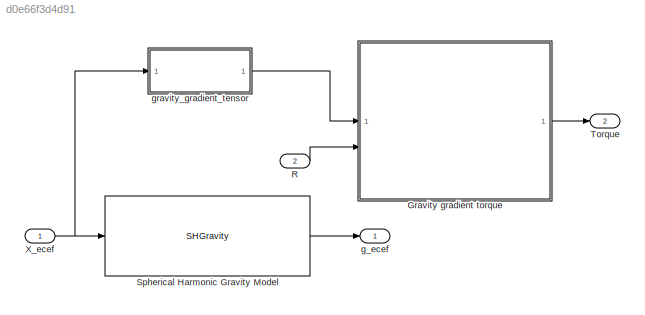
MODEL slx_d0e66f3d4d91
KIND model
CONFIG AbsTol = auto
CONFIG EnableMultiTasking = off
CONFIG FixedStep = 0.001
CONFIG MaxStep = auto
CONFIG MinStep = auto
CONFIG RelTol = 1e-3
CONFIG SampleTimeConstraint = Unconstrained
CONFIG SolverName = FixedStepAuto
CONFIG StartTime = 0.0
CONFIG StopTime = 10.0
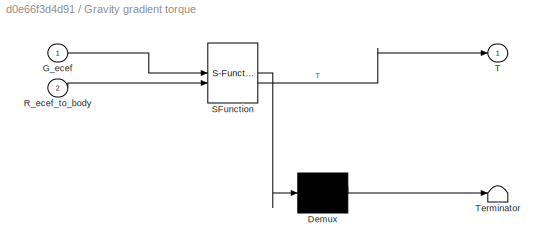
BLOCK [SubSystem] Gravity gradient torque
  ErrorFcn = Stateflow.Translate.translate
  LibrarySourceBlock = simulink/User-Defined\nFunctions/MATLAB Function
  PermitHierarchicalResolution = ExplicitOnly
  SFBlockType = MATLAB Function
  TreatAsAtomicUnit = on
BLOCK [Demux] Gravity gradient torque/ Demux 
  Outputs = 1
BLOCK [S-Function] Gravity gradient torque/ SFunction 
  EnableBusSupport = on
  FunctionName = sf_sfun
  Parameters = I
  PortCounts = [2 2]
  SFcnIsStateOwnerBlock = off
  SFunctionDeploymentMode = off
  Tag = Stateflow S-Function 2
BLOCK [Terminator] Gravity gradient torque/ Terminator 
BLOCK [Inport] Gravity gradient torque/G_ecef
BLOCK [Inport] Gravity gradient torque/R_ecef_to_body
  Port = 2
BLOCK [Outport] Gravity gradient torque/T
BLOCK [Inport] R
  Interpolate = off
  Port = 2
  PortDimensions = [3 3]
BLOCK [SHGravity] Spherical Harmonic Gravity Model
BLOCK [Outport] Torque
  Port = 2
  PortDimensions = 3
BLOCK [Inport] X_ecef
  PortDimensions = 3
BLOCK [Outport] g_ecef
  PortDimensions = 3
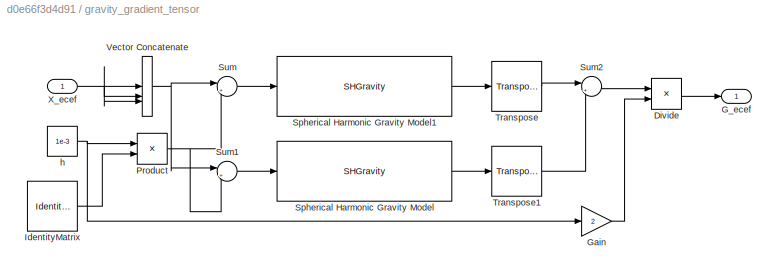
BLOCK [SubSystem] gravity_gradient_tensor
BLOCK [Product] gravity_gradient_tensor/Divide
  Inputs = */
BLOCK [Outport] gravity_gradient_tensor/G_ecef
  PortDimensions = [3 3]
BLOCK [Gain] gravity_gradient_tensor/Gain
  Gain = 2
BLOCK [IdentityMatrix] gravity_gradient_tensor/IdentityMatrix
  OutputDimensions = 3
BLOCK [Product] gravity_gradient_tensor/Product
BLOCK [SHGravity] gravity_gradient_tensor/Spherical Harmonic Gravity Model
BLOCK [SHGravity] gravity_gradient_tensor/Spherical Harmonic Gravity Model1
BLOCK [Sum] gravity_gradient_tensor/Sum
  Inputs = |++
BLOCK [Sum] gravity_gradient_tensor/Sum1
  Inputs = |+-
BLOCK [Sum] gravity_gradient_tensor/Sum2
  Inputs = |+-
BLOCK [Reference] gravity_gradient_tensor/Transpose  REF=matrix_library/Transpose
  LibrarySourceBlock = simulink/Matrix\nOperations/Transpose
  SourceBlock = matrix_library/Transpose
  SourceType = Transpose
BLOCK [Reference] gravity_gradient_tensor/Transpose1  REF=matrix_library/Transpose
  LibrarySourceBlock = simulink/Matrix\nOperations/Transpose
  SourceBlock = matrix_library/Transpose
  SourceType = Transpose
BLOCK [Concatenate] gravity_gradient_tensor/Vector Concatenate
  ConcatenateDimension = 2
  Mode = Multidimensional array
  NumInputs = 3
BLOCK [Inport] gravity_gradient_tensor/X_ecef
BLOCK [Constant] gravity_gradient_tensor/h
  Value = 1e-3
LINE Gravity gradient torque:1 -> Torque:1
LINE R:1 -> Gravity gradient torque:2
LINE Spherical Harmonic Gravity Model:1 -> g_ecef:1
NET X_ecef:1 -> Spherical Harmonic Gravity Model:1, gravity_gradient_tensor:1
LINE gravity_gradient_tensor/Divide:1 -> gravity_gradient_tensor/G_ecef:1
LINE gravity_gradient_tensor/Gain:1 -> gravity_gradient_tensor/Divide:2
LINE gravity_gradient_tensor/IdentityMatrix:1 -> gravity_gradient_tensor/Product:2
NET gravity_gradient_tensor/Product:1 -> gravity_gradient_tensor/Sum1:2, gravity_gradient_tensor/Sum:2
LINE gravity_gradient_tensor/Spherical Harmonic Gravity Model1:1 -> gravity_gradient_tensor/Transpose:1
LINE gravity_gradient_tensor/Spherical Harmonic Gravity Model:1 -> gravity_gradient_tensor/Transpose1:1
LINE gravity_gradient_tensor/Sum1:1 -> gravity_gradient_tensor/Spherical Harmonic Gravity Model:1
LINE gravity_gradient_tensor/Sum2:1 -> gravity_gradient_tensor/Divide:1
LINE gravity_gradient_tensor/Sum:1 -> gravity_gradient_tensor/Spherical Harmonic Gravity Model1:1
LINE gravity_gradient_tensor/Transpose1:1 -> gravity_gradient_tensor/Sum2:2
LINE gravity_gradient_tensor/Transpose:1 -> gravity_gradient_tensor/Sum2:1
NET gravity_gradient_tensor/Vector Concatenate:1 -> gravity_gradient_tensor/Sum1:1, gravity_gradient_tensor/Sum:1
NET gravity_gradient_tensor/X_ecef:1 -> gravity_gradient_tensor/Vector Concatenate:1, gravity_gradient_tensor/Vector Concatenate:2, gravity_gradient_tensor/Vector Concatenate:3
NET gravity_gradient_tensor/h:1 -> gravity_gradient_tensor/Gain:1, gravity_gradient_tensor/Product:1
LINE gravity_gradient_tensor:1 -> Gravity gradient torque:1
note: NET lines group one-source signal fan-out (src -> all destinations, sorted); 1:1 wires keep LINE
CHART Gravity gradient torque states=1 transitions=1
  STATE_LABEL 'eML_blk_kernel()'
  STATE_LABEL "SCRIPT:\nfunction T   = gravity_torque(G_ecef, R_ecef_to_body, I) %#codegen\n    G_body = R_ecef_to_body' * G_ecef * R_ecef_to_body;\n    T = zeros(3,1);\n    T(1) = G_body(2,3) * (I(3,3) - I(2,2)) + G_body(1,3) * I(1,2) - G_body(1,2) * I(1,3) + I(2,3) * (G_body(3,3) - G_body(2,2));\n    T(2) = G_body(1,3) * (I(1,1) - I(3,3)) - G_body(2,3) * I(1,2) + G_body(1,2) * I(2,3) + I(1,3) * (G_body(1,1) - G_bod...<+141ch>"
CHART  states=0 transitions=0
